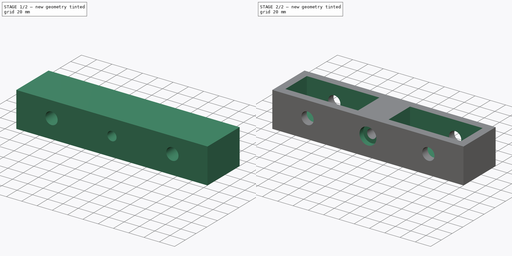
[diagram: build sequence overview — one tinted view per stage of 2, left to right]
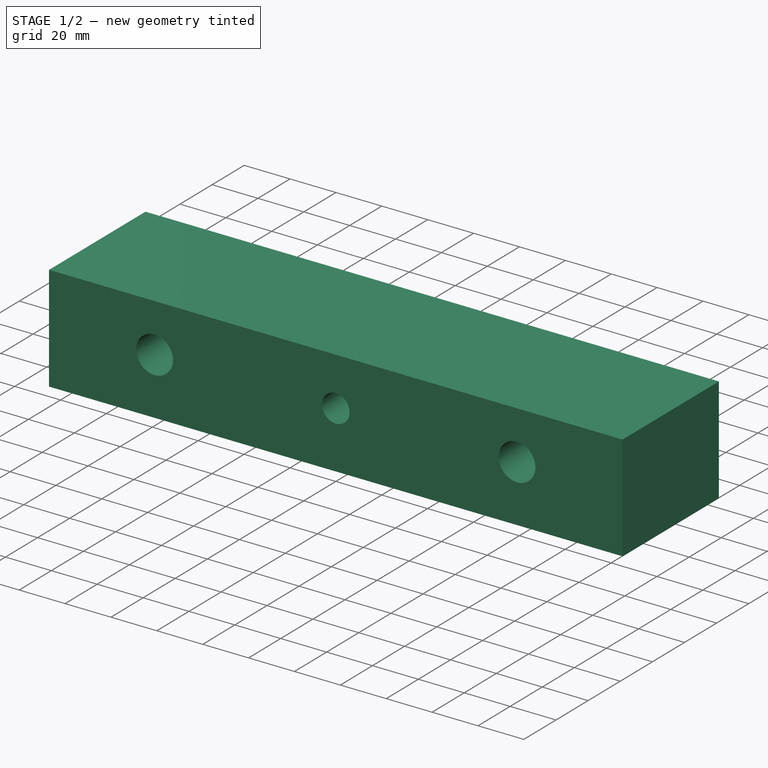
[diagram: stage 1 of 2 — iso view after this stage's code; geometry added in this stage tinted green]
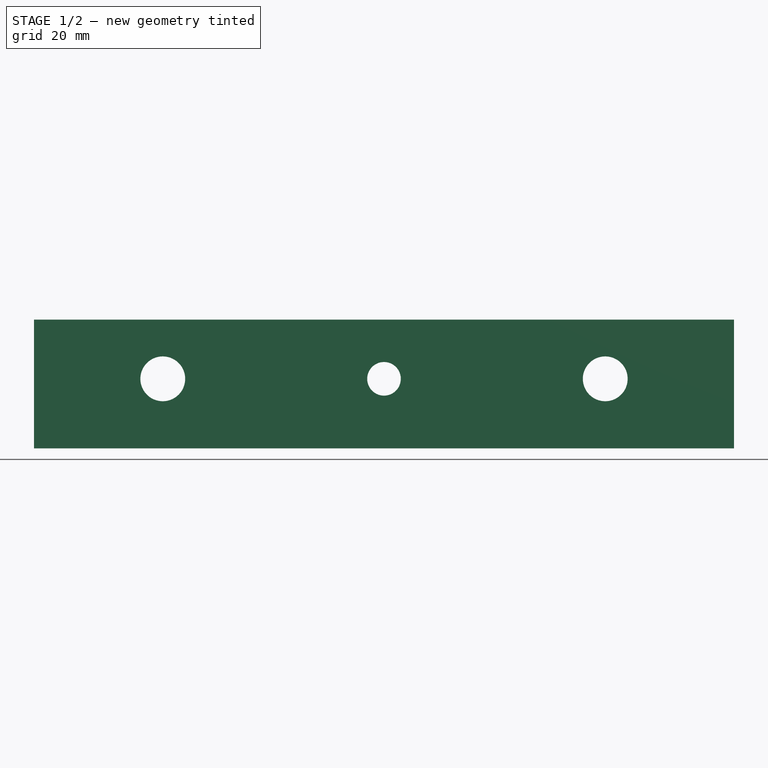
[diagram: stage 1 of 2 — front view after this stage's code; geometry added in this stage tinted green]
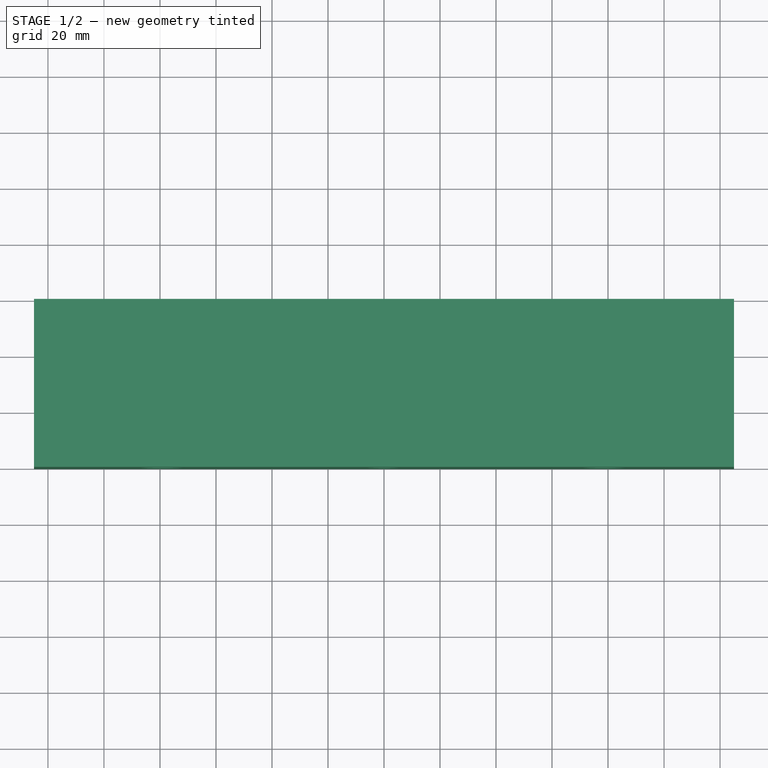
[diagram: stage 1 of 2 — top view after this stage's code; geometry added in this stage tinted green]
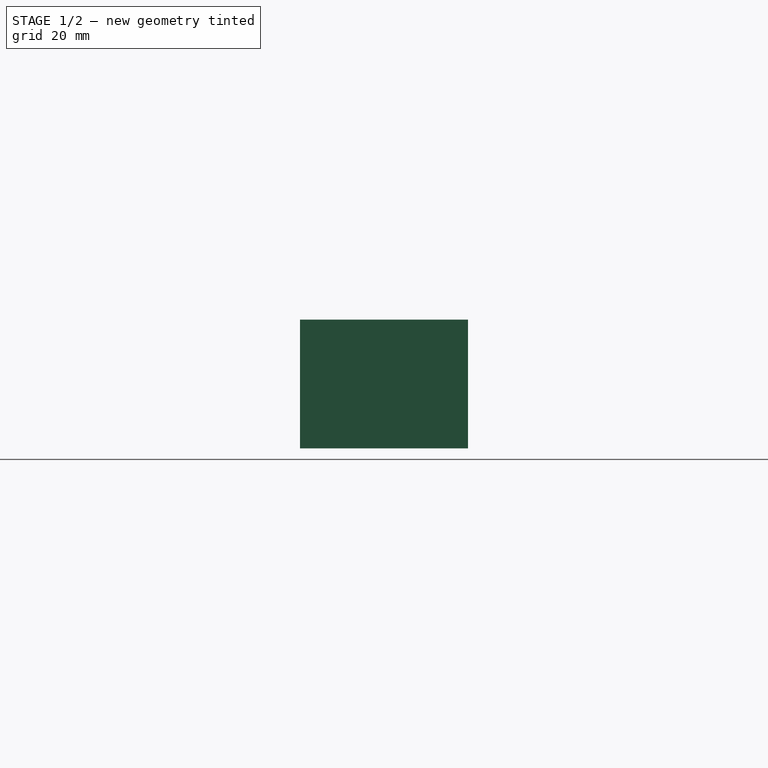
[diagram: stage 1 of 2 — right view after this stage's code; geometry added in this stage tinted green]
FCSTD DOCUMENT  (FreeCAD 0.14R3700 (Git))
Label: zAxisLowerbckup
License: CC-BY 3.0
LicenseURL: http://creativecommons.org/licenses/by/3.0/
objects: Sketcher::SketchObject×4, PartDesign::Pocket×3, PartDesign::Pad×1
note: 12 computed .brp shape members not serialized (recipe doc carries the construction recipe); baked Part::Feature solids carry a one-line shape summary decoded from their .brp

FEATURE [Sketcher::SketchObject] Sketch  label="box"
  Placement = pos=(0,0,0) rot=(1,0,0;1.5708rad)
  sketch-geometry (4):
    g0: LineSegment StartX=-125 StartY=-24.848 StartZ=0 EndX=125 EndY=-24.848 EndZ=0
    g1: LineSegment StartX=125 StartY=-24.848 StartZ=0 EndX=125 EndY=21.152 EndZ=0
    g2: LineSegment StartX=125 StartY=21.152 StartZ=0 EndX=-125 EndY=21.152 EndZ=0
    g3: LineSegment StartX=-125 StartY=21.152 StartZ=0 EndX=-125 EndY=-24.848 EndZ=0
  constraints (11):
    c: Coincident(g0,g1)
    c: Coincident(g1,g2)
    c: Coincident(g2,g3)
    c: Coincident(g3,g0)
    c: Horizontal(g0)
    c: Horizontal(g2)
    c: Vertical(g1)
    c: Vertical(g3)
    c: Distance(g2) = 250
    c: Distance(g3) = 46
    c: DistanceX(g-1,g0) = 125
FEATURE [PartDesign::Pad] Pad
  Length = 60
  Length2 = 100
  Placement = pos=(0,0,0) rot=(1,0,0;1.5708rad)
  Reversed = true
  Sketch = -> Sketch
  Type = 0
FEATURE [Sketcher::SketchObject] Sketch001  label="support rod and lead screw holes"
  Placement = pos=(0,0,0) rot=(1,0,0;1.5708rad)
  Support = -> Pad [Face5]
  sketch-geometry (3):
    g0: Circle CenterX=-79 CenterY=0 CenterZ=0 NormalX=0 NormalY=0 NormalZ=1 Radius=8
    g1: Circle CenterX=0 CenterY=0 CenterZ=0 NormalX=0 NormalY=0 NormalZ=1 Radius=6
    g2: Circle CenterX=79 CenterY=0 CenterZ=0 NormalX=0 NormalY=0 NormalZ=1 Radius=8
  constraints (7):
    c: DistanceX(g0,g2) = 158
    c: PointOnObject(g0,g-1)
    c: PointOnObject(g2,g-1)
    c: Radius(g1) = 6
    c: Radius(g2) = 8
    c: Equal(g0,g2)
    c: DistanceX(g-1,g2) = 79
FEATURE [PartDesign::Pocket] Pocket
  Length = 5
  Placement = pos=(0,0,0) rot=(1,0,0;1.5708rad)
  Sketch = -> Sketch001
  Type = 1
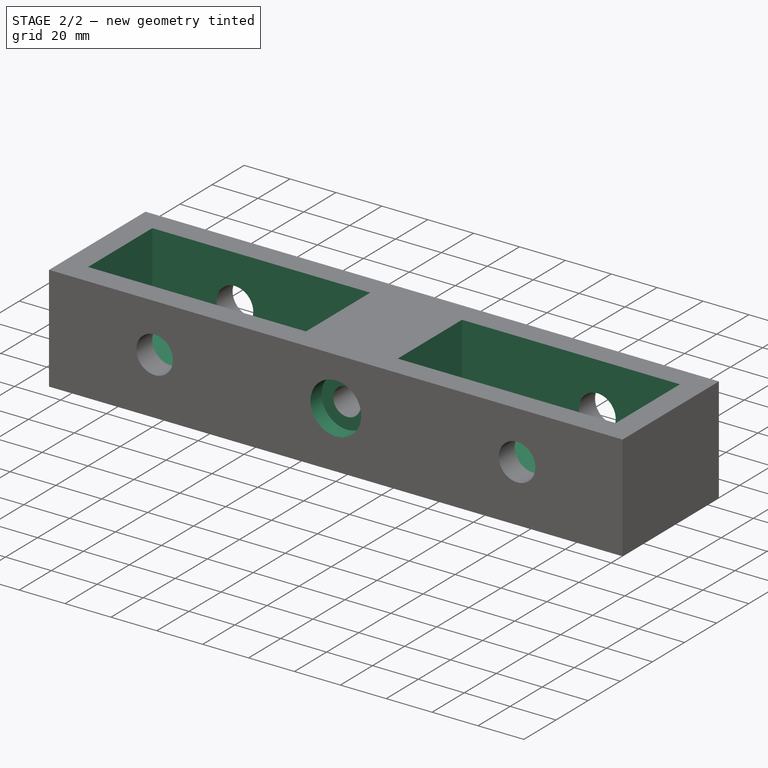
[diagram: stage 2 of 2 — iso view after this stage's code; geometry added in this stage tinted green]
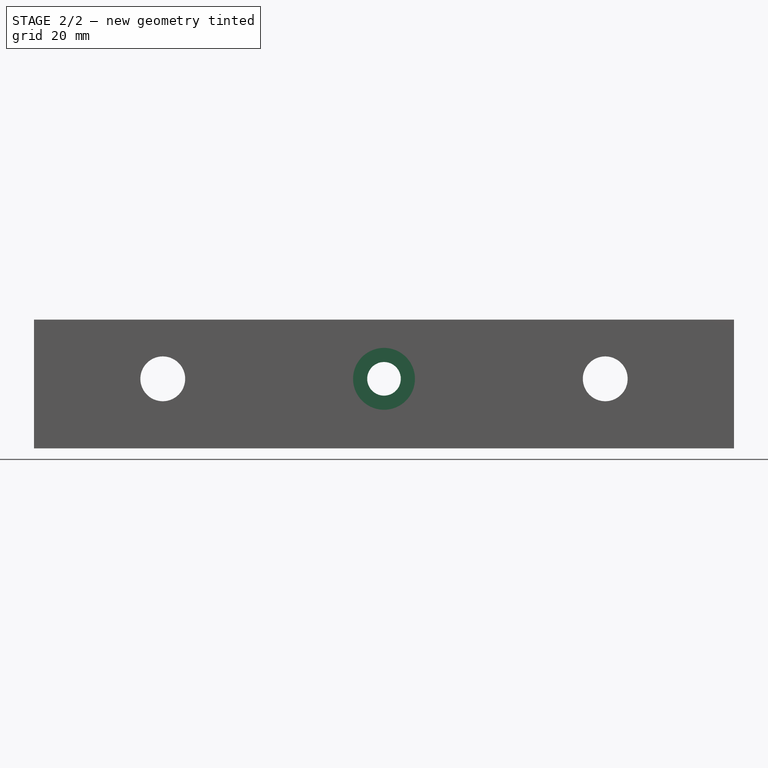
[diagram: stage 2 of 2 — front view after this stage's code; geometry added in this stage tinted green]
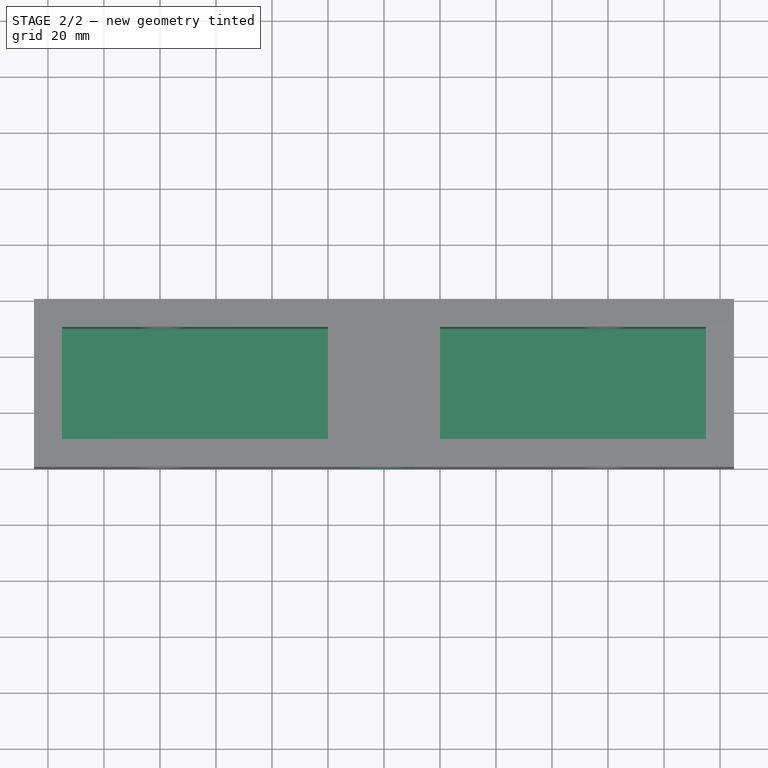
[diagram: stage 2 of 2 — top view after this stage's code; geometry added in this stage tinted green]
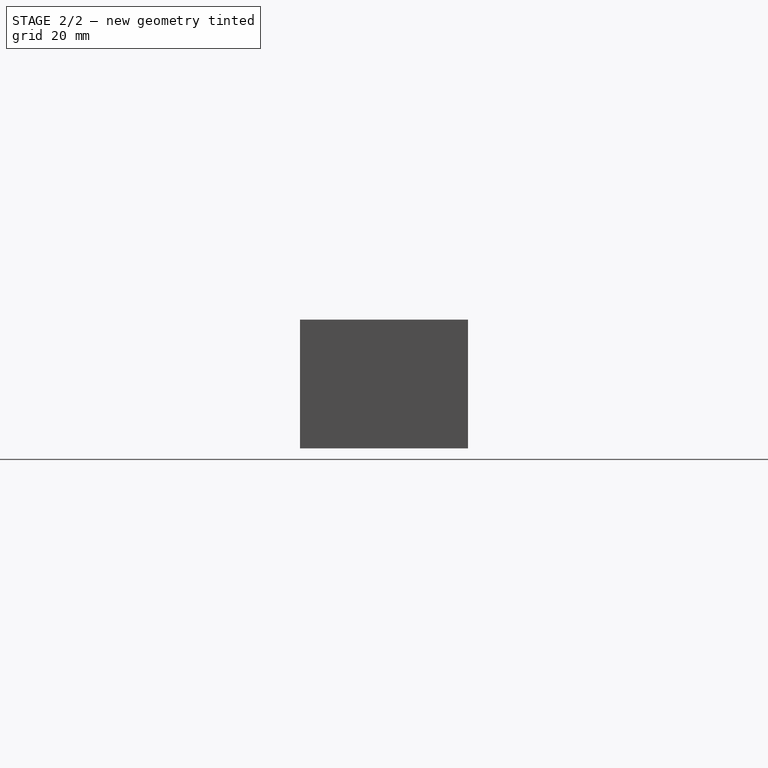
[diagram: stage 2 of 2 — right view after this stage's code; geometry added in this stage tinted green]
FEATURE [Sketcher::SketchObject] Sketch002  label="square holes"
  Placement = pos=(0,0,21.152) rot=(0,0,1;3.14159rad)
  Support = -> Pocket [Face6]
  sketch-geometry (8):
    g0: LineSegment StartX=-115 StartY=-10 StartZ=0 EndX=-20 EndY=-10 EndZ=0
    g1: LineSegment StartX=-20 StartY=-10 StartZ=0 EndX=-20 EndY=-50 EndZ=0
    g2: LineSegment StartX=-20 StartY=-50 StartZ=0 EndX=-115 EndY=-50 EndZ=0
    g3: LineSegment StartX=-115 StartY=-50 StartZ=0 EndX=-115 EndY=-10 EndZ=0
    g4: LineSegment StartX=20 StartY=-10 StartZ=0 EndX=115 EndY=-10 EndZ=0
    g5: LineSegment StartX=115 StartY=-10 StartZ=0 EndX=115 EndY=-50 EndZ=0
    g6: LineSegment StartX=115 StartY=-50 StartZ=0 EndX=20 EndY=-50 EndZ=0
    g7: LineSegment StartX=20 StartY=-50 StartZ=0 EndX=20 EndY=-10 EndZ=0
  constraints (24):
    c: Coincident(g0,g1)
    c: Coincident(g1,g2)
    c: Coincident(g2,g3)
    c: Coincident(g3,g0)
    c: Horizontal(g0)
    c: Horizontal(g2)
    c: Vertical(g1)
    c: Vertical(g3)
    c: Coincident(g4,g5)
    c: Coincident(g5,g6)
    c: Coincident(g6,g7)
    c: Coincident(g7,g4)
    c: Horizontal(g4)
    c: Horizontal(g6)
    c: Vertical(g5)
    c: Vertical(g7)
    c: DistanceY(g-1,g0) = -10
    c: DistanceY(g3) = 40
    c: DistanceX(g-1,g0) = -20
    c: Equal(g7,g3)
    c: Equal(g4,g0)
    c: DistanceY(g-1,g4) = -10
    c: DistanceX(g-1,g6) = 20
    c: Distance(g2) = 95
FEATURE [PartDesign::Pocket] Pocket001  label="square hole"
  Length = 40
  Placement = pos=(0,0,0) rot=(1,0,0;1.5708rad)
  Sketch = -> Sketch002
  Type = 0
FEATURE [Sketcher::SketchObject] Sketch003
  Placement = pos=(0,0,0) rot=(1,0,0;1.5708rad)
  Support = -> Pocket001 [Face4]
  sketch-geometry (1):
    g0: Circle CenterX=0 CenterY=0 CenterZ=0 NormalX=0 NormalY=0 NormalZ=1 Radius=11.05
  constraints (3):
    c: PointOnObject(g0,g-1)
    c: PointOnObject(g0,g-2)
    c: Radius(g0) = 11.05
FEATURE [PartDesign::Pocket] Pocket002  label="bearing hole"
  Length = 7
  Placement = pos=(0,0,0) rot=(1,0,0;1.5708rad)
  Sketch = -> Sketch003
  Type = 0
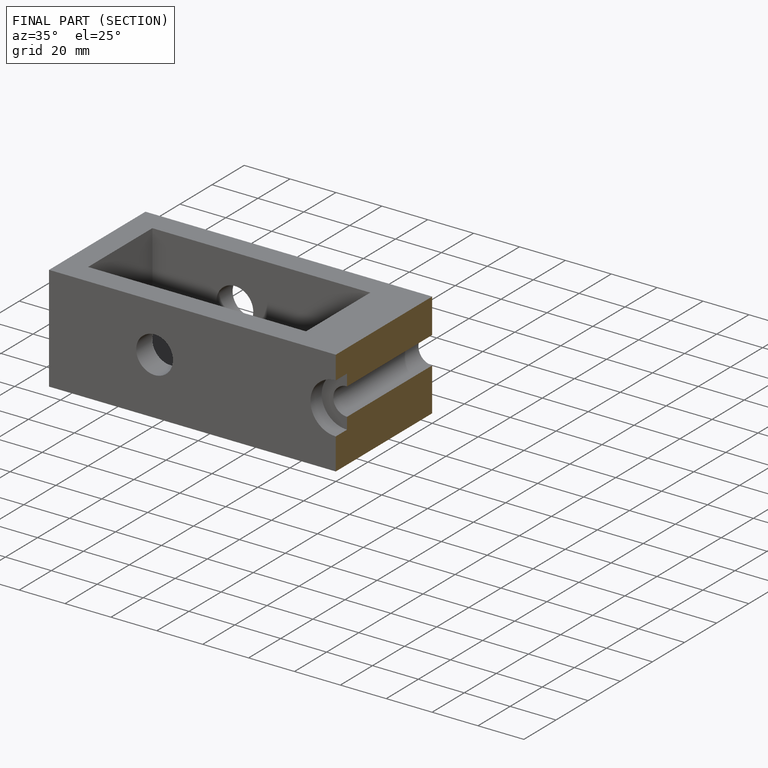
[diagram: finished part — half-section view (interior)]
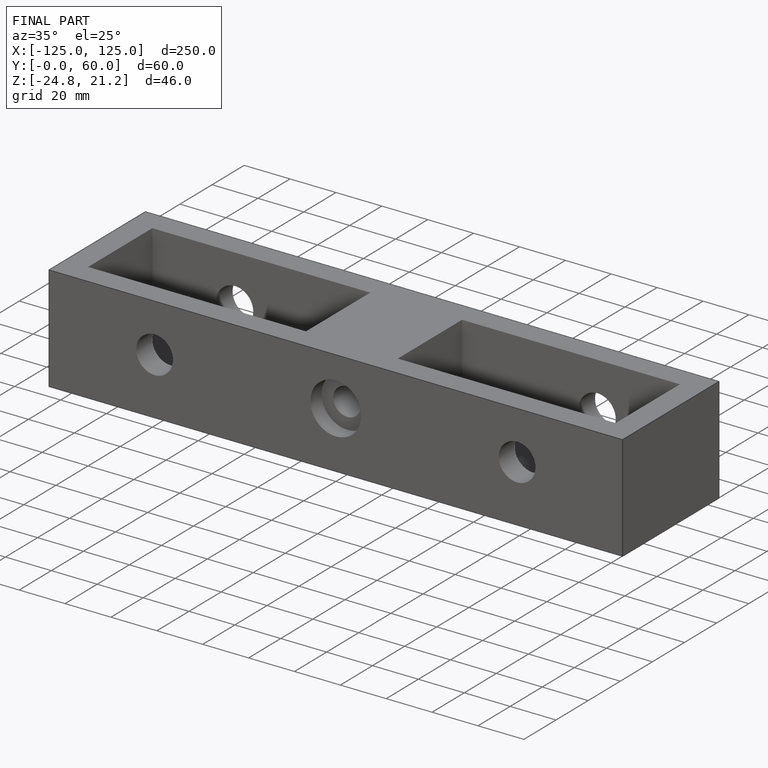
[diagram: finished part — iso view with bounding-box wireframe]
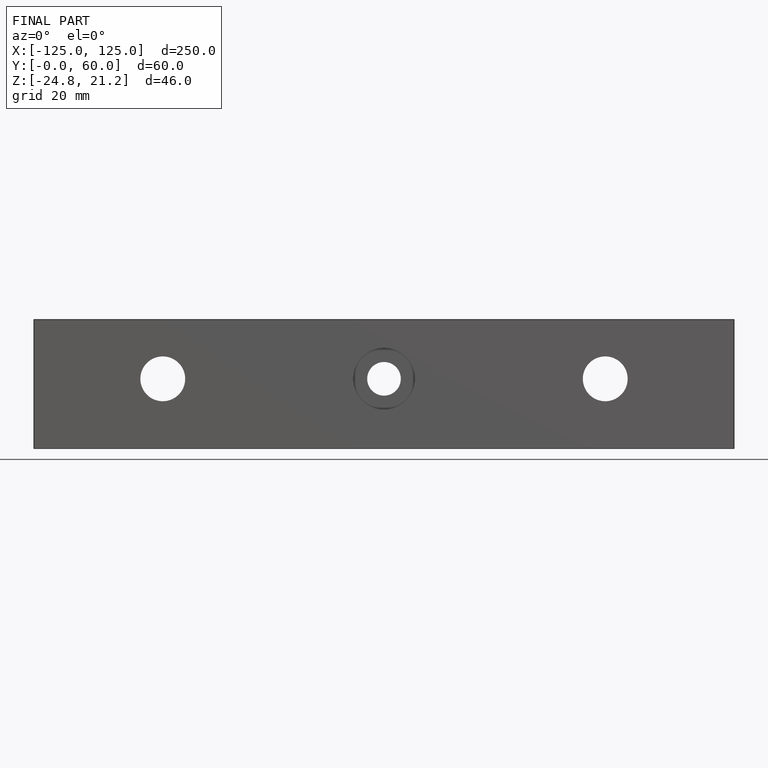
[diagram: finished part — front view with bounding-box wireframe]
